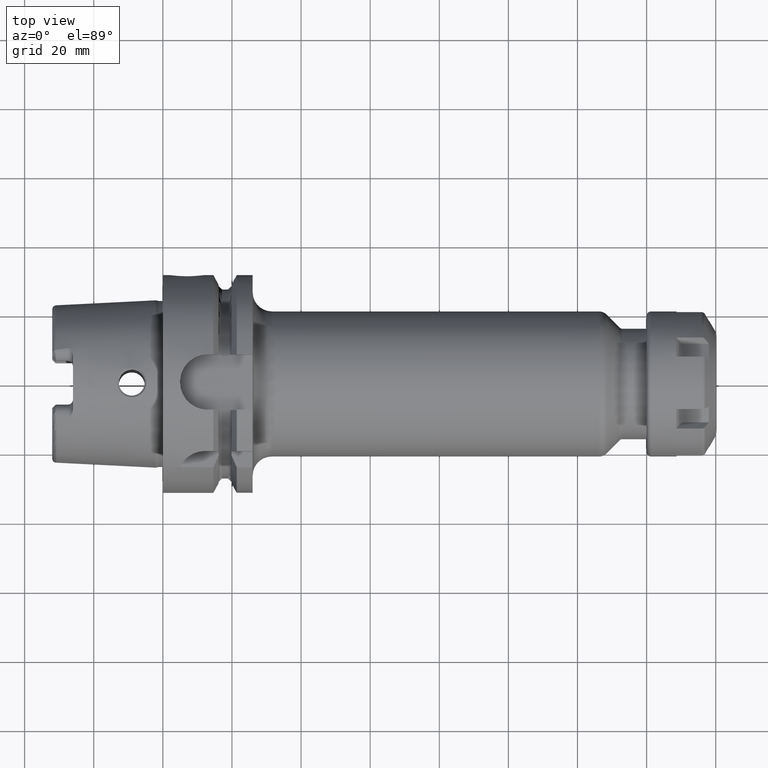
[diagram: clean part render]
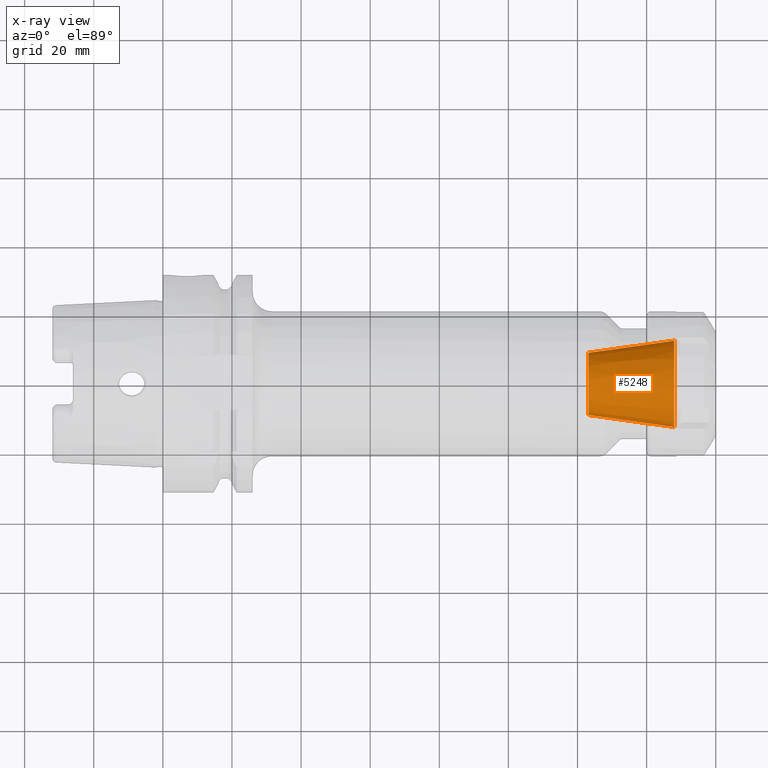
[diagram: x-ray — body ghosted, one internal face saturated and labeled with its STEP entity id]
A machine part, top view, then the same camera in x-ray: the body is ghosted and one INTERNAL B-rep face — a face not visible from any outside direction — is saturated and labeled: STEP entity #5248.
In plain terms, the highlighted conical surface has half-angle 8 deg.
Its self-contained STEP definition (entity closure, byte-faithful):
#1928=CARTESIAN_POINT('',(1.48E2,0.E0,0.E0));
#1929=DIRECTION('',(1.E0,0.E0,0.E0));
#1930=DIRECTION('',(0.E0,1.E0,0.E0));
#1931=AXIS2_PLACEMENT_3D('',#1928,#1929,#1930);
#1938=DIRECTION('',(-9.902680687416E-1,1.391731009601E-1,0.E0));
#1939=VECTOR('',#1938,2.514853787015E1);
#1940=CARTESIAN_POINT('',(1.48E2,-1.25E1,0.E0));
#1941=LINE('',#1940,#1939);
#1942=DIRECTION('',(-9.902680687416E-1,-1.391731009601E-1,0.E0));
#1943=VECTOR('',#1942,2.514853787015E1);
#1944=CARTESIAN_POINT('',(1.48E2,1.25E1,0.E0));
#1945=LINE('',#1944,#1943);
#1959=CARTESIAN_POINT('',(1.230962059717E2,0.E0,0.E0));
#1960=DIRECTION('',(1.E0,0.E0,0.E0));
#1961=DIRECTION('',(0.E0,1.E0,0.E0));
#1962=AXIS2_PLACEMENT_3D('',#1959,#1960,#1961);
#3187=CARTESIAN_POINT('',(1.230962059717E2,9.E0,0.E0));
#3189=VERTEX_POINT('',#3187);
#3191=CARTESIAN_POINT('',(1.230962059717E2,-9.E0,0.E0));
#3193=VERTEX_POINT('',#3191);
#3195=CARTESIAN_POINT('',(1.48E2,1.25E1,0.E0));
#3196=CARTESIAN_POINT('',(1.48E2,-1.25E1,0.E0));
#3197=VERTEX_POINT('',#3195);
#3198=VERTEX_POINT('',#3196);
#5234=CARTESIAN_POINT('',(1.355481029858E2,0.E0,0.E0));
#5235=DIRECTION('',(1.E0,0.E0,0.E0));
#5236=DIRECTION('',(0.E0,-1.E0,0.E0));
#5237=AXIS2_PLACEMENT_3D('',#5234,#5235,#5236);
#5238=CONICAL_SURFACE('',#5237,1.075E1,8.E0);
#5239=ORIENTED_EDGE('',*,*,#5227,.F.);
#5241=ORIENTED_EDGE('',*,*,#5240,.T.);
#5243=ORIENTED_EDGE('',*,*,#5242,.T.);
#5245=ORIENTED_EDGE('',*,*,#5244,.F.);
#5246=EDGE_LOOP('',(#5239,#5241,#5243,#5245));
#5247=FACE_OUTER_BOUND('',#5246,.F.);
#5248=ADVANCED_FACE('',(#5247),#5238,.F.);
#1932=CIRCLE('',#1931,1.25E1);
#1963=CIRCLE('',#1962,9.E0);
#5227=EDGE_CURVE('',#3197,#3198,#1932,.T.);
#5240=EDGE_CURVE('',#3197,#3189,#1945,.T.);
#5242=EDGE_CURVE('',#3189,#3193,#1963,.T.);
#5244=EDGE_CURVE('',#3198,#3193,#1941,.T.);